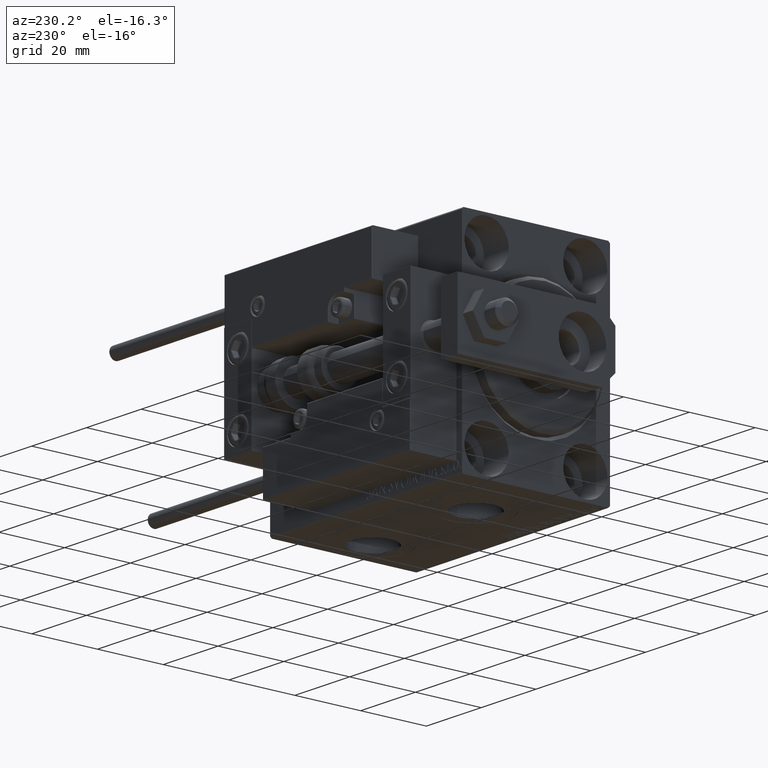
[diagram: clean part render]
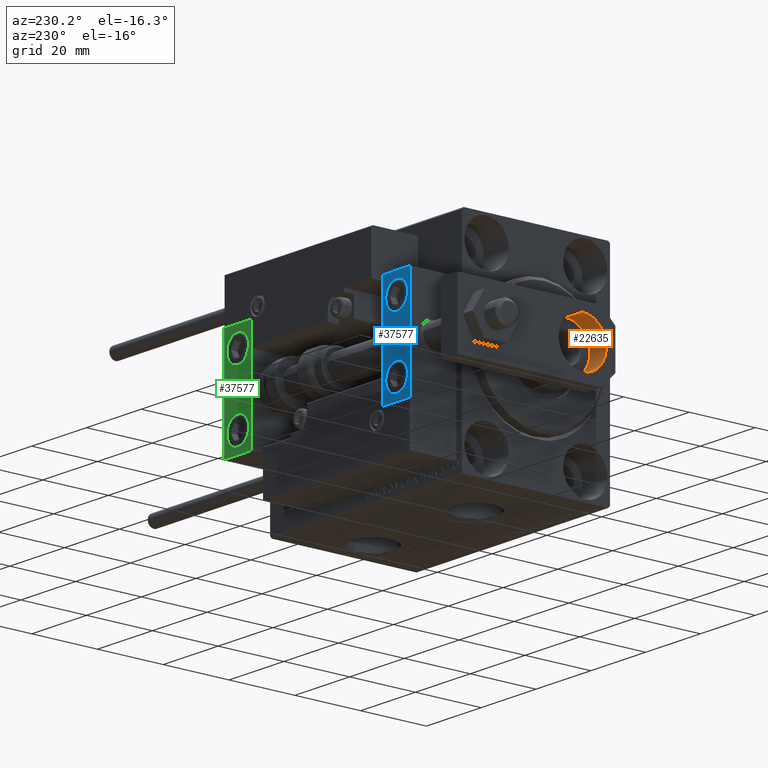
[diagram: same view with three faces highlighted in distinct colors, each labeled with its STEP entity id]
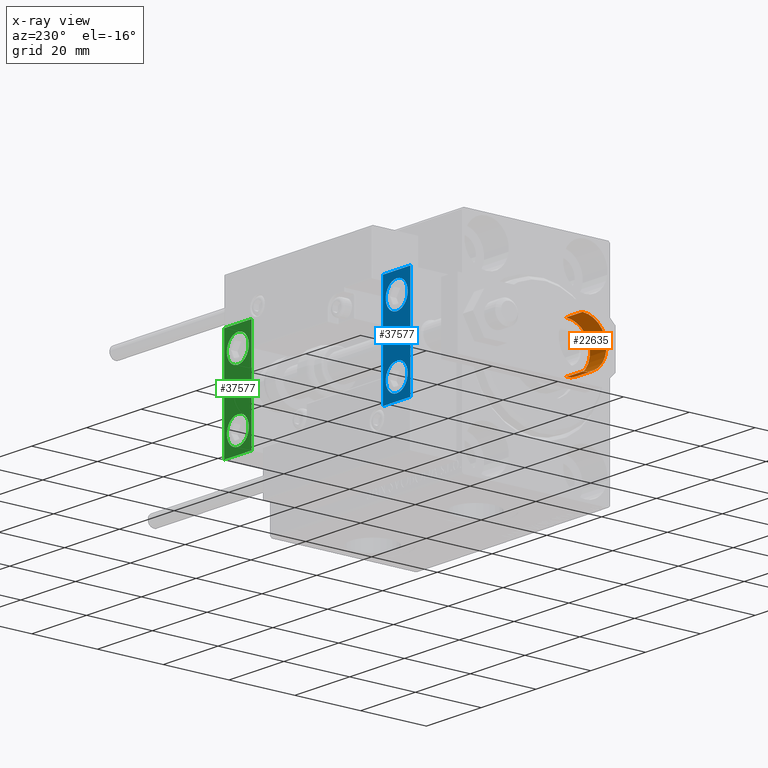
[diagram: x-ray of the same camera — body ghosted, the three highlighted faces saturated]
A machine part, auxiliary view with three faces highlighted in distinct colors.
The next image is the same camera in x-ray (body ghosted, the three faces saturated) — at least one of them is partly hidden behind the body in this view.
Their STEP definitions:

[orange] entity #22635 — the highlighted cylindrical surface (edge-blend (fillet) strip) has radius 7.25 mm, axis along (1, -0, -0).
#105 = CYLINDRICAL_SURFACE ( 'NONE', #32772, 7.250000000000000000 ) ;
#2744 = CARTESIAN_POINT ( 'NONE',  ( -7.250000000000000000, 10.00000000000000178, 6.000000000000000000 ) ) ;
#4023 = FACE_OUTER_BOUND ( 'NONE', #7749, .T. ) ;
#7749 = EDGE_LOOP ( 'NONE', ( #35505, #37728, #40321, #25229 ) ) ;
#8802 = VERTEX_POINT ( 'NONE', #30688 ) ;
#9532 = EDGE_CURVE ( 'NONE', #49071, #16378, #33278, .T. ) ;
#10466 = AXIS2_PLACEMENT_3D ( 'NONE', #28320, #36408, #30367 ) ;
#10710 = DIRECTION ( 'NONE',  ( 1.000000000000000000, 0.000000000000000000, 0.000000000000000000 ) ) ;
#12369 = CARTESIAN_POINT ( 'NONE',  ( -7.250000000000000000, 10.00000000000000178, 0.000000000000000000 ) ) ;
#13312 = DIRECTION ( 'NONE',  ( -0.000000000000000000, -0.000000000000000000, -1.000000000000000000 ) ) ;
#16378 = VERTEX_POINT ( 'NONE', #42025 ) ;
#17363 = DIRECTION ( 'NONE',  ( -0.000000000000000000, -0.000000000000000000, -1.000000000000000000 ) ) ;
#22635 = ADVANCED_FACE ( 'NONE', ( #4023 ), #105, .F. ) ;
#24516 = CARTESIAN_POINT ( 'NONE',  ( 7.250000000000000000, 10.00000000000000355, 6.000000000000000000 ) ) ;
#25229 = ORIENTED_EDGE ( 'NONE', *, *, #26409, .F. ) ;
#25599 = VERTEX_POINT ( 'NONE', #12369 ) ;
#25945 = LINE ( 'NONE', #37421, #26246 ) ;
#26246 = VECTOR ( 'NONE', #17363, 1000.000000000000000 ) ;
#26409 = EDGE_CURVE ( 'NONE', #49071, #25599, #25945, .T. ) ;
#28320 = CARTESIAN_POINT ( 'NONE',  ( -9.629649721936179265E-32, 10.00000000000000178, 0.000000000000000000 ) ) ;
#29996 = CARTESIAN_POINT ( 'NONE',  ( -9.629649721936179265E-32, 10.00000000000000178, 6.000000000000000000 ) ) ;
#30367 = DIRECTION ( 'NONE',  ( 1.000000000000000000, 0.000000000000000000, 0.000000000000000000 ) ) ;
#30688 = CARTESIAN_POINT ( 'NONE',  ( 7.250000000000000000, 10.00000000000000355, 0.000000000000000000 ) ) ;
#32610 = LINE ( 'NONE', #24516, #42860 ) ;
#32772 = AXIS2_PLACEMENT_3D ( 'NONE', #43889, #48846, #37087 ) ;
#33278 = CIRCLE ( 'NONE', #50728, 7.250000000000000000 ) ;
#35505 = ORIENTED_EDGE ( 'NONE', *, *, #9532, .T. ) ;
#36408 = DIRECTION ( 'NONE',  ( 0.000000000000000000, 0.000000000000000000, 1.000000000000000000 ) ) ;
#37087 = DIRECTION ( 'NONE',  ( -1.000000000000000000, 0.000000000000000000, 0.000000000000000000 ) ) ;
#37421 = CARTESIAN_POINT ( 'NONE',  ( -7.250000000000000000, 10.00000000000000178, 6.000000000000000000 ) ) ;
#37728 = ORIENTED_EDGE ( 'NONE', *, *, #47391, .T. ) ;
#38326 = DIRECTION ( 'NONE',  ( 0.000000000000000000, 0.000000000000000000, 1.000000000000000000 ) ) ;
#40321 = ORIENTED_EDGE ( 'NONE', *, *, #45548, .F. ) ;
#42025 = CARTESIAN_POINT ( 'NONE',  ( 7.250000000000000000, 10.00000000000000355, 6.000000000000000000 ) ) ;
#42081 = CIRCLE ( 'NONE', #10466, 7.250000000000000000 ) ;
#42860 = VECTOR ( 'NONE', #13312, 1000.000000000000000 ) ;
#43889 = CARTESIAN_POINT ( 'NONE',  ( -9.629649721936179265E-32, 10.00000000000000178, 6.000000000000000000 ) ) ;
#45548 = EDGE_CURVE ( 'NONE', #25599, #8802, #42081, .T. ) ;
#47391 = EDGE_CURVE ( 'NONE', #16378, #8802, #32610, .T. ) ;
#48846 = DIRECTION ( 'NONE',  ( -0.000000000000000000, -0.000000000000000000, -1.000000000000000000 ) ) ;
#49071 = VERTEX_POINT ( 'NONE', #2744 ) ;
#50728 = AXIS2_PLACEMENT_3D ( 'NONE', #29996, #38326, #10710 ) ;

[blue] entity #37577 — the highlighted planar face has unit normal (-0, 1, -0).
#121 = CIRCLE ( 'NONE', #20910, 4.000000000000000000 ) ;
#209 = EDGE_LOOP ( 'NONE', ( #22243, #1423 ) ) ;
#1003 = VERTEX_POINT ( 'NONE', #23147 ) ;
#1192 = VERTEX_POINT ( 'NONE', #21572 ) ;
#1423 = ORIENTED_EDGE ( 'NONE', *, *, #51529, .F. ) ;
#1519 = DIRECTION ( 'NONE',  ( 0.000000000000000000, 0.000000000000000000, 1.000000000000000000 ) ) ;
#1811 = VERTEX_POINT ( 'NONE', #35237 ) ;
#2709 = ORIENTED_EDGE ( 'NONE', *, *, #17731, .T. ) ;
#2756 = VECTOR ( 'NONE', #27880, 1000.000000000000000 ) ;
#2868 = DIRECTION ( 'NONE',  ( 0.000000000000000000, 0.000000000000000000, -1.000000000000000000 ) ) ;
#2905 = LINE ( 'NONE', #6304, #17568 ) ;
#5415 = CIRCLE ( 'NONE', #28683, 4.000000000000000888 ) ;
#5576 = AXIS2_PLACEMENT_3D ( 'NONE', #41736, #25576, #25058 ) ;
#5688 = DIRECTION ( 'NONE',  ( 1.848892746611746419E-32, -1.000000000000000000, 6.616381192988677562E-17 ) ) ;
#6173 = EDGE_CURVE ( 'NONE', #24225, #1192, #11446, .T. ) ;
#6304 = CARTESIAN_POINT ( 'NONE',  ( 0.000000000000000000, 7.000000000000000000, 15.99999999999999289 ) ) ;
#8161 = CARTESIAN_POINT ( 'NONE',  ( 10.00000000000000000, 7.000000000000000000, 15.99999999999999289 ) ) ;
#9252 = VERTEX_POINT ( 'NONE', #36025 ) ;
#9305 = VECTOR ( 'NONE', #28025, 1000.000000000000000 ) ;
#9675 = DIRECTION ( 'NONE',  ( 0.000000000000000000, 0.000000000000000000, 1.000000000000000000 ) ) ;
#10533 = ORIENTED_EDGE ( 'NONE', *, *, #6173, .T. ) ;
#10681 = CARTESIAN_POINT ( 'NONE',  ( 10.00000000000000000, 7.000000000000000000, 15.99999999999999289 ) ) ;
#10789 = EDGE_LOOP ( 'NONE', ( #39383, #24908, #10533, #2709 ) ) ;
#10883 = CARTESIAN_POINT ( 'NONE',  ( 10.00000000000000000, 7.000000000000000000, 15.99999999999999289 ) ) ;
#11446 = LINE ( 'NONE', #10681, #30735 ) ;
#11630 = LINE ( 'NONE', #39491, #9305 ) ;
#11995 = LINE ( 'NONE', #35462, #2756 ) ;
#12317 = CARTESIAN_POINT ( 'NONE',  ( 5.000000000000001776, 6.999999999999999112, -14.00000000000000178 ) ) ;
#12538 = DIRECTION ( 'NONE',  ( 0.000000000000000000, 1.000000000000000000, -6.065466699219605527E-17 ) ) ;
#12570 = FACE_BOUND ( 'NONE', #33294, .T. ) ;
#13674 = EDGE_CURVE ( 'NONE', #1811, #1003, #121, .T. ) ;
#17124 = CARTESIAN_POINT ( 'NONE',  ( 0.000000000000000000, 7.000000000000000000, 15.99999999999999289 ) ) ;
#17296 = VERTEX_POINT ( 'NONE', #48277 ) ;
#17568 = VECTOR ( 'NONE', #50088, 1000.000000000000000 ) ;
#17649 = CARTESIAN_POINT ( 'NONE',  ( 5.000000000000000888, 7.000000000000000888, 10.00000000000000178 ) ) ;
#17731 = EDGE_CURVE ( 'NONE', #1192, #9252, #11630, .T. ) ;
#20618 = EDGE_CURVE ( 'NONE', #24225, #28303, #11995, .T. ) ;
#20910 = AXIS2_PLACEMENT_3D ( 'NONE', #17649, #5688, #1519 ) ;
#21313 = ORIENTED_EDGE ( 'NONE', *, *, #13674, .T. ) ;
#21572 = CARTESIAN_POINT ( 'NONE',  ( 10.00000000000000000, 7.000000000000000000, -16.00000000000000711 ) ) ;
#22243 = ORIENTED_EDGE ( 'NONE', *, *, #47341, .F. ) ;
#23147 = CARTESIAN_POINT ( 'NONE',  ( 5.000000000000001776, 7.000000000000000888, 6.000000000000000888 ) ) ;
#24225 = VERTEX_POINT ( 'NONE', #10883 ) ;
#24908 = ORIENTED_EDGE ( 'NONE', *, *, #20618, .F. ) ;
#25058 = DIRECTION ( 'NONE',  ( 0.000000000000000000, 0.000000000000000000, 1.000000000000000000 ) ) ;
#25576 = DIRECTION ( 'NONE',  ( 0.000000000000000000, 1.000000000000000000, -6.065466699219605527E-17 ) ) ;
#27880 = DIRECTION ( 'NONE',  ( -1.000000000000000000, -0.000000000000000000, -0.000000000000000000 ) ) ;
#28025 = DIRECTION ( 'NONE',  ( -1.000000000000000000, -0.000000000000000000, -0.000000000000000000 ) ) ;
#28303 = VERTEX_POINT ( 'NONE', #17124 ) ;
#28683 = AXIS2_PLACEMENT_3D ( 'NONE', #48268, #12538, #44602 ) ;
#30735 = VECTOR ( 'NONE', #2868, 1000.000000000000000 ) ;
#32124 = FACE_OUTER_BOUND ( 'NONE', #10789, .T. ) ;
#32709 = ORIENTED_EDGE ( 'NONE', *, *, #43148, .T. ) ;
#33294 = EDGE_LOOP ( 'NONE', ( #21313, #32709 ) ) ;
#33679 = AXIS2_PLACEMENT_3D ( 'NONE', #49298, #45382, #9675 ) ;
#34803 = EDGE_CURVE ( 'NONE', #28303, #9252, #2905, .T. ) ;
#35237 = CARTESIAN_POINT ( 'NONE',  ( 5.000000000000000888, 7.000000000000000888, 14.00000000000000178 ) ) ;
#35462 = CARTESIAN_POINT ( 'NONE',  ( 10.00000000000000000, 7.000000000000000000, 15.99999999999999289 ) ) ;
#36025 = CARTESIAN_POINT ( 'NONE',  ( 0.000000000000000000, 7.000000000000000000, -16.00000000000000711 ) ) ;
#36030 = DIRECTION ( 'NONE',  ( -0.000000000000000000, 1.000000000000000000, 0.000000000000000000 ) ) ;
#36165 = CIRCLE ( 'NONE', #33679, 4.000000000000000000 ) ;
#36291 = DIRECTION ( 'NONE',  ( 0.000000000000000000, -0.000000000000000000, 1.000000000000000000 ) ) ;
#36809 = AXIS2_PLACEMENT_3D ( 'NONE', #8161, #36030, #36291 ) ;
#37433 = VERTEX_POINT ( 'NONE', #12317 ) ;
#37577 = ADVANCED_FACE ( 'NONE', ( #32124, #48558, #12570 ), #47775, .T. ) ;
#39383 = ORIENTED_EDGE ( 'NONE', *, *, #34803, .F. ) ;
#39491 = CARTESIAN_POINT ( 'NONE',  ( 10.00000000000000000, 7.000000000000000000, -16.00000000000000711 ) ) ;
#41736 = CARTESIAN_POINT ( 'NONE',  ( 5.000000000000000888, 6.999999999999999112, -10.00000000000000178 ) ) ;
#43148 = EDGE_CURVE ( 'NONE', #1003, #1811, #36165, .T. ) ;
#43838 = CIRCLE ( 'NONE', #5576, 4.000000000000000888 ) ;
#44602 = DIRECTION ( 'NONE',  ( 0.000000000000000000, 0.000000000000000000, 1.000000000000000000 ) ) ;
#45382 = DIRECTION ( 'NONE',  ( 1.848892746611746419E-32, -1.000000000000000000, 6.616381192988677562E-17 ) ) ;
#47341 = EDGE_CURVE ( 'NONE', #17296, #37433, #5415, .T. ) ;
#47775 = PLANE ( 'NONE',  #36809 ) ;
#48268 = CARTESIAN_POINT ( 'NONE',  ( 5.000000000000000888, 6.999999999999999112, -10.00000000000000178 ) ) ;
#48277 = CARTESIAN_POINT ( 'NONE',  ( 5.000000000000000888, 6.999999999999999112, -6.000000000000000888 ) ) ;
#48558 = FACE_BOUND ( 'NONE', #209, .T. ) ;
#49298 = CARTESIAN_POINT ( 'NONE',  ( 5.000000000000000888, 7.000000000000000888, 10.00000000000000178 ) ) ;
#50088 = DIRECTION ( 'NONE',  ( 0.000000000000000000, 0.000000000000000000, -1.000000000000000000 ) ) ;
#51529 = EDGE_CURVE ( 'NONE', #37433, #17296, #43838, .T. ) ;

[green] entity #37577 — the highlighted planar face has unit normal (0, 1, 0).
#121 = CIRCLE ( 'NONE', #20910, 4.000000000000000000 ) ;
#209 = EDGE_LOOP ( 'NONE', ( #22243, #1423 ) ) ;
#1003 = VERTEX_POINT ( 'NONE', #23147 ) ;
#1192 = VERTEX_POINT ( 'NONE', #21572 ) ;
#1423 = ORIENTED_EDGE ( 'NONE', *, *, #51529, .F. ) ;
#1519 = DIRECTION ( 'NONE',  ( 0.000000000000000000, 0.000000000000000000, 1.000000000000000000 ) ) ;
#1811 = VERTEX_POINT ( 'NONE', #35237 ) ;
#2709 = ORIENTED_EDGE ( 'NONE', *, *, #17731, .T. ) ;
#2756 = VECTOR ( 'NONE', #27880, 1000.000000000000000 ) ;
#2868 = DIRECTION ( 'NONE',  ( 0.000000000000000000, 0.000000000000000000, -1.000000000000000000 ) ) ;
#2905 = LINE ( 'NONE', #6304, #17568 ) ;
#5415 = CIRCLE ( 'NONE', #28683, 4.000000000000000888 ) ;
#5576 = AXIS2_PLACEMENT_3D ( 'NONE', #41736, #25576, #25058 ) ;
#5688 = DIRECTION ( 'NONE',  ( 1.848892746611746419E-32, -1.000000000000000000, 6.616381192988677562E-17 ) ) ;
#6173 = EDGE_CURVE ( 'NONE', #24225, #1192, #11446, .T. ) ;
#6304 = CARTESIAN_POINT ( 'NONE',  ( 0.000000000000000000, 7.000000000000000000, 15.99999999999999289 ) ) ;
#8161 = CARTESIAN_POINT ( 'NONE',  ( 10.00000000000000000, 7.000000000000000000, 15.99999999999999289 ) ) ;
#9252 = VERTEX_POINT ( 'NONE', #36025 ) ;
#9305 = VECTOR ( 'NONE', #28025, 1000.000000000000000 ) ;
#9675 = DIRECTION ( 'NONE',  ( 0.000000000000000000, 0.000000000000000000, 1.000000000000000000 ) ) ;
#10533 = ORIENTED_EDGE ( 'NONE', *, *, #6173, .T. ) ;
#10681 = CARTESIAN_POINT ( 'NONE',  ( 10.00000000000000000, 7.000000000000000000, 15.99999999999999289 ) ) ;
#10789 = EDGE_LOOP ( 'NONE', ( #39383, #24908, #10533, #2709 ) ) ;
#10883 = CARTESIAN_POINT ( 'NONE',  ( 10.00000000000000000, 7.000000000000000000, 15.99999999999999289 ) ) ;
#11446 = LINE ( 'NONE', #10681, #30735 ) ;
#11630 = LINE ( 'NONE', #39491, #9305 ) ;
#11995 = LINE ( 'NONE', #35462, #2756 ) ;
#12317 = CARTESIAN_POINT ( 'NONE',  ( 5.000000000000001776, 6.999999999999999112, -14.00000000000000178 ) ) ;
#12538 = DIRECTION ( 'NONE',  ( 0.000000000000000000, 1.000000000000000000, -6.065466699219605527E-17 ) ) ;
#12570 = FACE_BOUND ( 'NONE', #33294, .T. ) ;
#13674 = EDGE_CURVE ( 'NONE', #1811, #1003, #121, .T. ) ;
#17124 = CARTESIAN_POINT ( 'NONE',  ( 0.000000000000000000, 7.000000000000000000, 15.99999999999999289 ) ) ;
#17296 = VERTEX_POINT ( 'NONE', #48277 ) ;
#17568 = VECTOR ( 'NONE', #50088, 1000.000000000000000 ) ;
#17649 = CARTESIAN_POINT ( 'NONE',  ( 5.000000000000000888, 7.000000000000000888, 10.00000000000000178 ) ) ;
#17731 = EDGE_CURVE ( 'NONE', #1192, #9252, #11630, .T. ) ;
#20618 = EDGE_CURVE ( 'NONE', #24225, #28303, #11995, .T. ) ;
#20910 = AXIS2_PLACEMENT_3D ( 'NONE', #17649, #5688, #1519 ) ;
#21313 = ORIENTED_EDGE ( 'NONE', *, *, #13674, .T. ) ;
#21572 = CARTESIAN_POINT ( 'NONE',  ( 10.00000000000000000, 7.000000000000000000, -16.00000000000000711 ) ) ;
#22243 = ORIENTED_EDGE ( 'NONE', *, *, #47341, .F. ) ;
#23147 = CARTESIAN_POINT ( 'NONE',  ( 5.000000000000001776, 7.000000000000000888, 6.000000000000000888 ) ) ;
#24225 = VERTEX_POINT ( 'NONE', #10883 ) ;
#24908 = ORIENTED_EDGE ( 'NONE', *, *, #20618, .F. ) ;
#25058 = DIRECTION ( 'NONE',  ( 0.000000000000000000, 0.000000000000000000, 1.000000000000000000 ) ) ;
#25576 = DIRECTION ( 'NONE',  ( 0.000000000000000000, 1.000000000000000000, -6.065466699219605527E-17 ) ) ;
#27880 = DIRECTION ( 'NONE',  ( -1.000000000000000000, -0.000000000000000000, -0.000000000000000000 ) ) ;
#28025 = DIRECTION ( 'NONE',  ( -1.000000000000000000, -0.000000000000000000, -0.000000000000000000 ) ) ;
#28303 = VERTEX_POINT ( 'NONE', #17124 ) ;
#28683 = AXIS2_PLACEMENT_3D ( 'NONE', #48268, #12538, #44602 ) ;
#30735 = VECTOR ( 'NONE', #2868, 1000.000000000000000 ) ;
#32124 = FACE_OUTER_BOUND ( 'NONE', #10789, .T. ) ;
#32709 = ORIENTED_EDGE ( 'NONE', *, *, #43148, .T. ) ;
#33294 = EDGE_LOOP ( 'NONE', ( #21313, #32709 ) ) ;
#33679 = AXIS2_PLACEMENT_3D ( 'NONE', #49298, #45382, #9675 ) ;
#34803 = EDGE_CURVE ( 'NONE', #28303, #9252, #2905, .T. ) ;
#35237 = CARTESIAN_POINT ( 'NONE',  ( 5.000000000000000888, 7.000000000000000888, 14.00000000000000178 ) ) ;
#35462 = CARTESIAN_POINT ( 'NONE',  ( 10.00000000000000000, 7.000000000000000000, 15.99999999999999289 ) ) ;
#36025 = CARTESIAN_POINT ( 'NONE',  ( 0.000000000000000000, 7.000000000000000000, -16.00000000000000711 ) ) ;
#36030 = DIRECTION ( 'NONE',  ( -0.000000000000000000, 1.000000000000000000, 0.000000000000000000 ) ) ;
#36165 = CIRCLE ( 'NONE', #33679, 4.000000000000000000 ) ;
#36291 = DIRECTION ( 'NONE',  ( 0.000000000000000000, -0.000000000000000000, 1.000000000000000000 ) ) ;
#36809 = AXIS2_PLACEMENT_3D ( 'NONE', #8161, #36030, #36291 ) ;
#37433 = VERTEX_POINT ( 'NONE', #12317 ) ;
#37577 = ADVANCED_FACE ( 'NONE', ( #32124, #48558, #12570 ), #47775, .T. ) ;
#39383 = ORIENTED_EDGE ( 'NONE', *, *, #34803, .F. ) ;
#39491 = CARTESIAN_POINT ( 'NONE',  ( 10.00000000000000000, 7.000000000000000000, -16.00000000000000711 ) ) ;
#41736 = CARTESIAN_POINT ( 'NONE',  ( 5.000000000000000888, 6.999999999999999112, -10.00000000000000178 ) ) ;
#43148 = EDGE_CURVE ( 'NONE', #1003, #1811, #36165, .T. ) ;
#43838 = CIRCLE ( 'NONE', #5576, 4.000000000000000888 ) ;
#44602 = DIRECTION ( 'NONE',  ( 0.000000000000000000, 0.000000000000000000, 1.000000000000000000 ) ) ;
#45382 = DIRECTION ( 'NONE',  ( 1.848892746611746419E-32, -1.000000000000000000, 6.616381192988677562E-17 ) ) ;
#47341 = EDGE_CURVE ( 'NONE', #17296, #37433, #5415, .T. ) ;
#47775 = PLANE ( 'NONE',  #36809 ) ;
#48268 = CARTESIAN_POINT ( 'NONE',  ( 5.000000000000000888, 6.999999999999999112, -10.00000000000000178 ) ) ;
#48277 = CARTESIAN_POINT ( 'NONE',  ( 5.000000000000000888, 6.999999999999999112, -6.000000000000000888 ) ) ;
#48558 = FACE_BOUND ( 'NONE', #209, .T. ) ;
#49298 = CARTESIAN_POINT ( 'NONE',  ( 5.000000000000000888, 7.000000000000000888, 10.00000000000000178 ) ) ;
#50088 = DIRECTION ( 'NONE',  ( 0.000000000000000000, 0.000000000000000000, -1.000000000000000000 ) ) ;
#51529 = EDGE_CURVE ( 'NONE', #37433, #17296, #43838, .T. ) ;